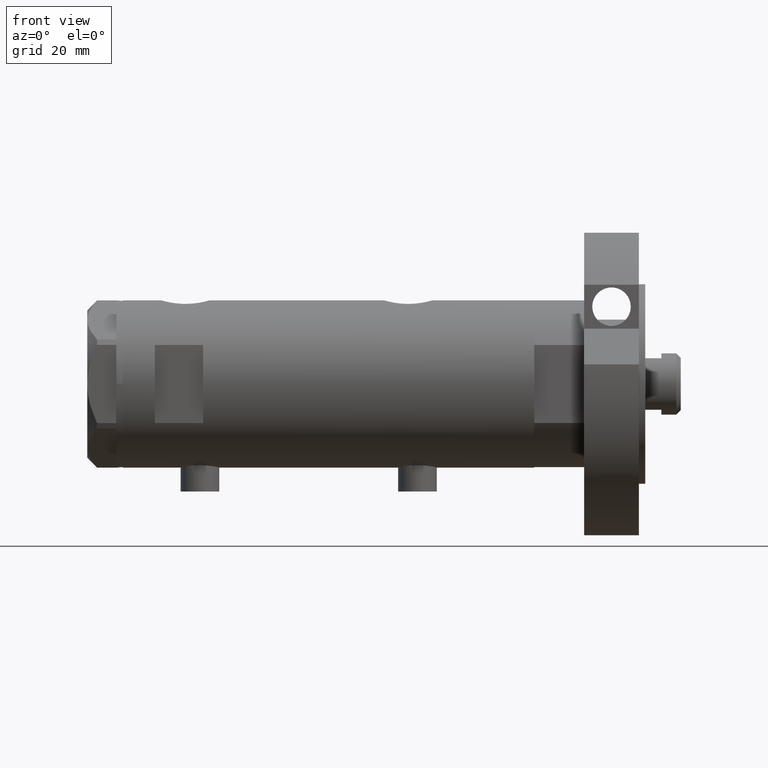
[diagram: clean part render]
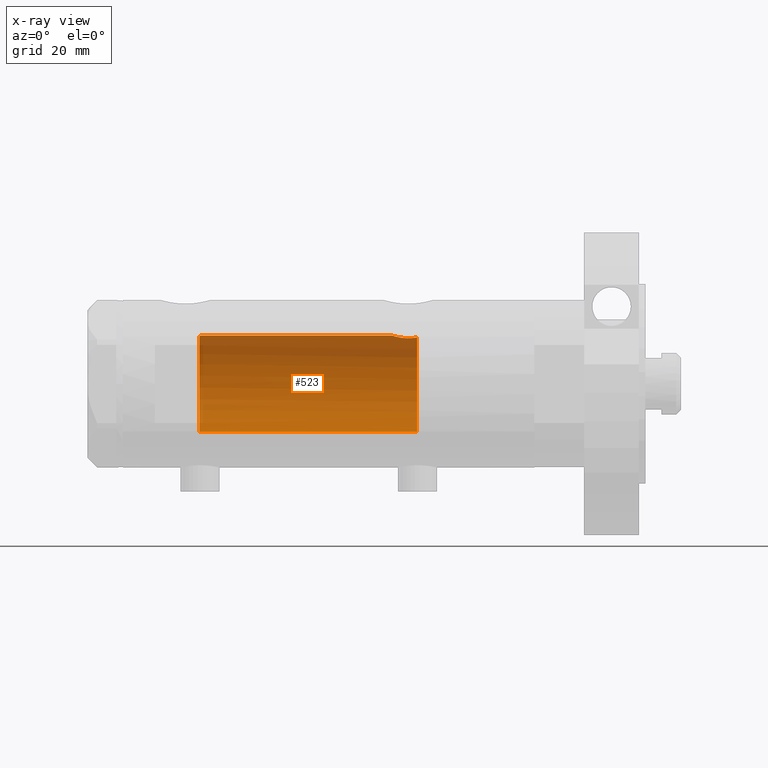
[diagram: x-ray — body ghosted, one internal face saturated and labeled with its STEP entity id]
A machine part, front view, then the same camera in x-ray: the body is ghosted and one INTERNAL B-rep face — a face not visible from any outside direction — is saturated and labeled: STEP entity #523.
In plain terms, the highlighted cylindrical surface (partial cylindrical patch) has radius 15 mm, axis along (1, 0, -0).
Its self-contained STEP definition (entity closure, byte-faithful):
#64 = DIRECTION ( 'NONE',  ( 0.000000000000000000, 0.000000000000000000, -1.000000000000000000 ) ) ;
#164 = CARTESIAN_POINT ( 'NONE',  ( 14.96070684509191295, 1.105917936056760809, -20.00719211967313527 ) ) ;
#198 = EDGE_CURVE ( 'NONE', #5574, #6238, #4185, .T. ) ;
#238 = FACE_OUTER_BOUND ( 'NONE', #1257, .T. ) ;
#254 = DIRECTION ( 'NONE',  ( -0.000000000000000000, -0.000000000000000000, -1.000000000000000000 ) ) ;
#328 = CARTESIAN_POINT ( 'NONE',  ( 14.39420242489971358, 4.221147702577648708, -27.17871871185444732 ) ) ;
#398 = CARTESIAN_POINT ( 'NONE',  ( 14.25831405531605256, 4.659025730769703166, -26.16798855846091598 ) ) ;
#425 = CARTESIAN_POINT ( 'NONE',  ( 14.23996709707015995, 4.714409263334268907, -23.52876674044652461 ) ) ;
#523 = ADVANCED_FACE ( 'NONE', ( #238 ), #3344, .F. ) ;
#622 = VERTEX_POINT ( 'NONE', #5515 ) ;
#660 = CARTESIAN_POINT ( 'NONE',  ( 14.99999999999999822, 0.2215872191885702169, -19.88499999999999801 ) ) ;
#698 = CARTESIAN_POINT ( 'NONE',  ( 14.72004460873233000, 2.909758128378250763, -20.82614485536703341 ) ) ;
#866 = CARTESIAN_POINT ( 'NONE',  ( 14.30778609824508507, 4.504821240468949384, -22.89964104205773765 ) ) ;
#873 = DIRECTION ( 'NONE',  ( -1.000000000000000000, 0.000000000000000000, 0.000000000000000000 ) ) ;
#899 = CARTESIAN_POINT ( 'NONE',  ( 14.25987224063200465, 4.654266980155756350, -23.31645838593740550 ) ) ;
#973 = AXIS2_PLACEMENT_3D ( 'NONE', #6338, #64, #2083 ) ;
#1045 = EDGE_CURVE ( 'NONE', #3231, #5574, #5932, .T. ) ;
#1195 = CARTESIAN_POINT ( 'NONE',  ( 14.90012193493785553, 1.740148100968097689, -20.20148967824481900 ) ) ;
#1216 = CARTESIAN_POINT ( 'NONE',  ( 15.00000000000000000, 1.836970198721029194E-15, 63.95000000000000995 ) ) ;
#1229 = CARTESIAN_POINT ( 'NONE',  ( 14.92306512695867582, 1.532295990539004116, -20.12730056478244123 ) ) ;
#1257 = EDGE_LOOP ( 'NONE', ( #5981, #1753, #6225, #3362, #1995, #2827 ) ) ;
#1428 = CARTESIAN_POINT ( 'NONE',  ( 14.33601656325283358, 4.414747171699214157, -22.69405684818109137 ) ) ;
#1544 = VECTOR ( 'NONE', #5082, 1000.000000000000000 ) ;
#1691 = CARTESIAN_POINT ( 'NONE',  ( 14.99509227038106474, 0.4430293709771132016, -19.90006686301529015 ) ) ;
#1753 = ORIENTED_EDGE ( 'NONE', *, *, #5637, .F. ) ;
#1823 = CARTESIAN_POINT ( 'NONE',  ( 14.64710079709035462, 3.249565827911971017, -21.10237283776275774 ) ) ;
#1985 = DIRECTION ( 'NONE',  ( 1.000000000000000000, 0.000000000000000000, 0.000000000000000000 ) ) ;
#1995 = ORIENTED_EDGE ( 'NONE', *, *, #3513, .T. ) ;
#2083 = DIRECTION ( 'NONE',  ( -1.000000000000000000, 0.000000000000000000, 0.000000000000000000 ) ) ;
#2180 = CARTESIAN_POINT ( 'NONE',  ( 14.84719462287499958, 2.145357993387301487, -20.37798666051606133 ) ) ;
#2242 = DIRECTION ( 'NONE',  ( -0.000000000000000000, -0.000000000000000000, -1.000000000000000000 ) ) ;
#2258 = LINE ( 'NONE', #1216, #2443 ) ;
#2330 = CARTESIAN_POINT ( 'NONE',  ( 14.19413554982521575, 4.851369549374613399, -24.17746179061396106 ) ) ;
#2429 = CARTESIAN_POINT ( 'NONE',  ( 14.23822651595894939, 4.719656459720484420, -25.95110225956647554 ) ) ;
#2443 = VECTOR ( 'NONE', #254, 1000.000000000000000 ) ;
#2446 = CARTESIAN_POINT ( 'NONE',  ( 14.82638779339053947, 2.275571356824482194, 40.15000000000000568 ) ) ;
#2665 = CARTESIAN_POINT ( 'NONE',  ( 14.98404286071221136, 0.7911628595372635075, 39.63357750803344715 ) ) ;
#2679 = AXIS2_PLACEMENT_3D ( 'NONE', #5349, #2242, #873 ) ;
#2775 = CARTESIAN_POINT ( 'NONE',  ( -15.00000000000000000, 0.000000000000000000, 40.15000000000000568 ) ) ;
#2784 = B_SPLINE_CURVE_WITH_KNOTS ( 'NONE', 3,
 ( #6139, #660, #1691, #4658, #164, #1229, #1195, #2180, #5175, #698, #1823, #6426, #5379, #1428, #866, #899, #425, #2330, #5411, #4378, #2824, #2429, #398, #3337, #5868, #328, #5839, #3790 ),
 .UNSPECIFIED., .F., .F.,
 ( 4, 2, 2, 2, 2, 2, 2, 2, 2, 2, 2, 2, 2, 4 ),
 ( 0.01531448496322444265, 0.01597936247866483042, 0.01664423999410521993, 0.01730911750954560596, 0.01797399502498599200, 0.01930375005586676407, 0.02063350508674753614, 0.02129838260218791524, 0.02196326011762829780, 0.02329301514850905946, 0.02395789266394943509, 0.02462277017938981072, 0.02528764769483018635, 0.02595252521027056197 ),
 .UNSPECIFIED. ) ;
#2824 = CARTESIAN_POINT ( 'NONE',  ( 14.20808274384303793, 4.809639920165277083, -25.51496246579130656 ) ) ;
#2827 = ORIENTED_EDGE ( 'NONE', *, *, #3791, .F. ) ;
#2987 = B_SPLINE_CURVE_WITH_KNOTS ( 'NONE', 3,
 ( #3612, #3702, #6202, #5119, #5181, #2665, #4063, #4194 ),
 .UNSPECIFIED., .F., .F.,
 ( 4, 2, 2, 4 ),
 ( 0.02826119741494479559, 0.02885214443185066258, 0.02944309144875652956, 0.03062498548256826353 ),
 .UNSPECIFIED. ) ;
#3175 = CARTESIAN_POINT ( 'NONE',  ( -15.00000000000000000, 0.000000000000000000, 63.95000000000000995 ) ) ;
#3231 = VERTEX_POINT ( 'NONE', #2446 ) ;
#3337 = CARTESIAN_POINT ( 'NONE',  ( 14.30582738521795783, 4.511024637967008921, -26.58517547595723940 ) ) ;
#3344 = CYLINDRICAL_SURFACE ( 'NONE', #2679, 15.00000000000000000 ) ;
#3362 = ORIENTED_EDGE ( 'NONE', *, *, #198, .T. ) ;
#3374 = VERTEX_POINT ( 'NONE', #3767 ) ;
#3403 = CARTESIAN_POINT ( 'NONE',  ( 0.000000000000000000, 0.000000000000000000, 40.15000000000000568 ) ) ;
#3513 = EDGE_CURVE ( 'NONE', #6238, #622, #5351, .T. ) ;
#3612 = CARTESIAN_POINT ( 'NONE',  ( 14.82638779339053947, 2.275571356824482194, 40.15000000000000568 ) ) ;
#3702 = CARTESIAN_POINT ( 'NONE',  ( 14.85285765243877343, 2.103108122960804405, 40.05873200114291421 ) ) ;
#3767 = CARTESIAN_POINT ( 'NONE',  ( 15.00000000000000000, 5.959273468635536151E-16, -19.88500000000000156 ) ) ;
#3790 = CARTESIAN_POINT ( 'NONE',  ( 14.46277203719951387, 3.978470183374505975, -27.55000000000000426 ) ) ;
#3791 = EDGE_CURVE ( 'NONE', #3374, #622, #2784, .T. ) ;
#4063 = CARTESIAN_POINT ( 'NONE',  ( 15.00000000000000533, 0.3998316629799384403, 39.58499999999999375 ) ) ;
#4185 = LINE ( 'NONE', #3175, #1544 ) ;
#4194 = CARTESIAN_POINT ( 'NONE',  ( 15.00000000000000000, 0.000000000000000000, 39.58500000000000085 ) ) ;
#4351 = DIRECTION ( 'NONE',  ( 0.000000000000000000, 0.000000000000000000, 1.000000000000000000 ) ) ;
#4378 = CARTESIAN_POINT ( 'NONE',  ( 14.19789541567450541, 4.839422427565551743, -25.29531557750247117 ) ) ;
#4400 = CARTESIAN_POINT ( 'NONE',  ( -15.00000000000000000, 0.000000000000000000, -27.55000000000000426 ) ) ;
#4658 = CARTESIAN_POINT ( 'NONE',  ( 14.97547159671691475, 0.8856171163179401562, -19.96107436056316686 ) ) ;
#4789 = EDGE_CURVE ( 'NONE', #6257, #3374, #2258, .T. ) ;
#4880 = AXIS2_PLACEMENT_3D ( 'NONE', #3403, #4351, #1985 ) ;
#4998 = CARTESIAN_POINT ( 'NONE',  ( 15.00000000000000000, 0.000000000000000000, 39.58500000000000085 ) ) ;
#5082 = DIRECTION ( 'NONE',  ( -0.000000000000000000, -0.000000000000000000, -1.000000000000000000 ) ) ;
#5119 = CARTESIAN_POINT ( 'NONE',  ( 14.92022334814851270, 1.556082286439814277, 39.83634472570268059 ) ) ;
#5175 = CARTESIAN_POINT ( 'NONE',  ( 14.81695028448457130, 2.344053258630411030, -20.48122781573722406 ) ) ;
#5181 = CARTESIAN_POINT ( 'NONE',  ( 14.93895715383719214, 1.365440931094920263, 39.77638192761232716 ) ) ;
#5349 = CARTESIAN_POINT ( 'NONE',  ( 0.000000000000000000, 0.000000000000000000, 63.95000000000000995 ) ) ;
#5351 = CIRCLE ( 'NONE', #973, 15.00000000000000000 ) ;
#5379 = CARTESIAN_POINT ( 'NONE',  ( 14.42796195111117008, 4.108450791336243135, -22.10736184290815132 ) ) ;
#5411 = CARTESIAN_POINT ( 'NONE',  ( 14.18274079043653479, 4.883732009304971200, -24.63167541567705854 ) ) ;
#5515 = CARTESIAN_POINT ( 'NONE',  ( 14.46277203719951387, 3.978470183374505975, -27.55000000000000426 ) ) ;
#5574 = VERTEX_POINT ( 'NONE', #2775 ) ;
#5637 = EDGE_CURVE ( 'NONE', #3231, #6257, #2987, .T. ) ;
#5839 = CARTESIAN_POINT ( 'NONE',  ( 14.42780822725581302, 4.105572710089621324, -27.36940228115441798 ) ) ;
#5868 = CARTESIAN_POINT ( 'NONE',  ( 14.33334483745704269, 4.423389780079197919, -26.78724945987952921 ) ) ;
#5932 = CIRCLE ( 'NONE', #4880, 15.00000000000000000 ) ;
#5981 = ORIENTED_EDGE ( 'NONE', *, *, #4789, .F. ) ;
#6139 = CARTESIAN_POINT ( 'NONE',  ( 15.00000000000000000, 5.959273468635536151E-16, -19.88500000000000156 ) ) ;
#6202 = CARTESIAN_POINT ( 'NONE',  ( 14.87714698525761392, 1.924825815456617129, 39.97761219789977361 ) ) ;
#6225 = ORIENTED_EDGE ( 'NONE', *, *, #1045, .T. ) ;
#6238 = VERTEX_POINT ( 'NONE', #4400 ) ;
#6257 = VERTEX_POINT ( 'NONE', #4998 ) ;
#6338 = CARTESIAN_POINT ( 'NONE',  ( 0.000000000000000000, 0.000000000000000000, -27.55000000000000426 ) ) ;
#6426 = CARTESIAN_POINT ( 'NONE',  ( 14.49939476291674545, 3.855488469592460277, -21.74998822577914126 ) ) ;